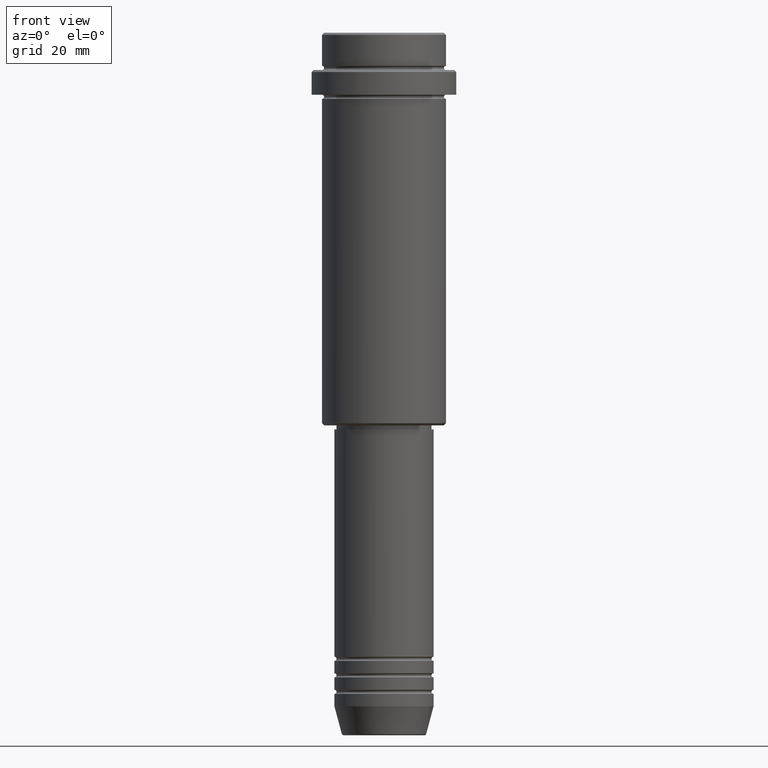
[diagram: clean part render]
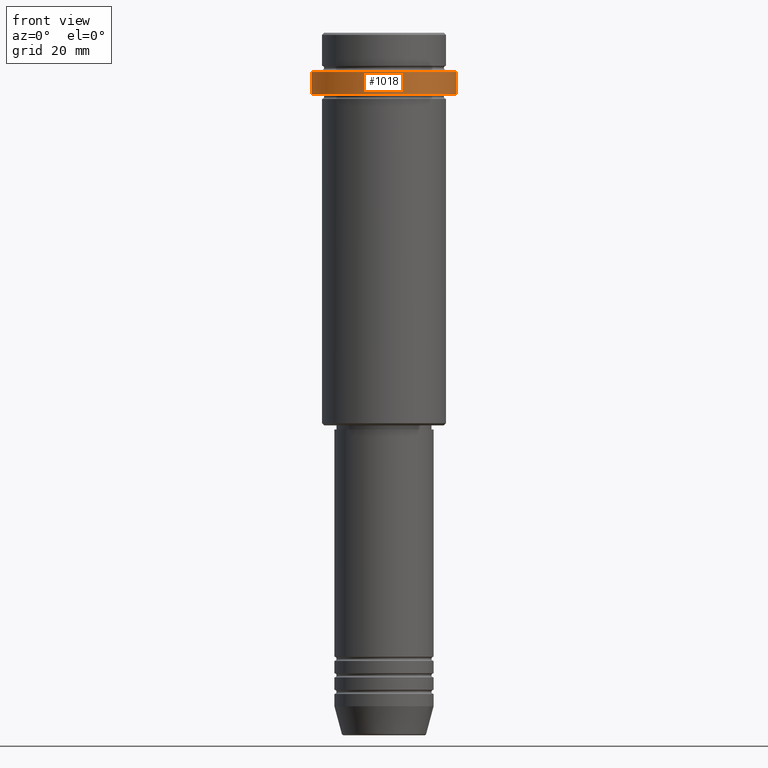
[diagram: same view with one face highlighted and labeled with its STEP entity id]
A machine part, front view. The second image highlights one B-rep face of the part: STEP entity #1018.
In plain terms, the highlighted cylindrical surface (partial cylindrical patch) has radius 17.5 mm, axis along (-0, -0, 1).
Its self-contained STEP definition (entity closure, byte-faithful):
#49 = VERTEX_POINT ( 'NONE', #283 ) ;
#52 = CARTESIAN_POINT ( 'NONE',  ( 17.50000000000000000, 0.000000000000000000, -15.00000000000000000 ) ) ;
#81 = EDGE_CURVE ( 'NONE', #49, #252, #910, .T. ) ;
#85 = VECTOR ( 'NONE', #139, 1000.000000000000000 ) ;
#104 = CARTESIAN_POINT ( 'NONE',  ( -17.50000000000000000, 2.143131898507868248E-15, -15.00000000000000000 ) ) ;
#139 = DIRECTION ( 'NONE',  ( -0.000000000000000000, -0.000000000000000000, 1.000000000000000000 ) ) ;
#177 = ORIENTED_EDGE ( 'NONE', *, *, #81, .T. ) ;
#252 = VERTEX_POINT ( 'NONE', #785 ) ;
#277 = CARTESIAN_POINT ( 'NONE',  ( 17.50000000000000000, 0.000000000000000000, 0.000000000000000000 ) ) ;
#283 = CARTESIAN_POINT ( 'NONE',  ( 17.50000000000000000, 0.000000000000000000, -9.500000000000055067 ) ) ;
#307 = AXIS2_PLACEMENT_3D ( 'NONE', #1147, #1366, #1354 ) ;
#316 = EDGE_CURVE ( 'NONE', #1116, #252, #1202, .T. ) ;
#341 = ORIENTED_EDGE ( 'NONE', *, *, #663, .T. ) ;
#375 = DIRECTION ( 'NONE',  ( -0.000000000000000000, -0.000000000000000000, 1.000000000000000000 ) ) ;
#378 = EDGE_CURVE ( 'NONE', #1335, #49, #1013, .T. ) ;
#386 = ORIENTED_EDGE ( 'NONE', *, *, #316, .F. ) ;
#389 = DIRECTION ( 'NONE',  ( -0.000000000000000000, -0.000000000000000000, 1.000000000000000000 ) ) ;
#394 = AXIS2_PLACEMENT_3D ( 'NONE', #496, #389, #1030 ) ;
#446 = ORIENTED_EDGE ( 'NONE', *, *, #378, .T. ) ;
#496 = CARTESIAN_POINT ( 'NONE',  ( 0.000000000000000000, 0.000000000000000000, -15.00000000000000000 ) ) ;
#566 = CIRCLE ( 'NONE', #394, 17.50000000000000000 ) ;
#662 = FACE_OUTER_BOUND ( 'NONE', #883, .T. ) ;
#663 = EDGE_CURVE ( 'NONE', #1116, #1335, #566, .T. ) ;
#687 = CARTESIAN_POINT ( 'NONE',  ( 0.000000000000000000, 0.000000000000000000, 0.000000000000000000 ) ) ;
#763 = CARTESIAN_POINT ( 'NONE',  ( -17.50000000000000000, 2.143131898507868248E-15, 0.000000000000000000 ) ) ;
#785 = CARTESIAN_POINT ( 'NONE',  ( -17.50000000000000000, 2.143131898507868248E-15, -9.500000000000055067 ) ) ;
#883 = EDGE_LOOP ( 'NONE', ( #386, #341, #446, #177 ) ) ;
#910 = CIRCLE ( 'NONE', #307, 17.50000000000000000 ) ;
#1013 = LINE ( 'NONE', #277, #1340 ) ;
#1018 = ADVANCED_FACE ( 'NONE', ( #662 ), #1102, .T. ) ;
#1030 = DIRECTION ( 'NONE',  ( 1.000000000000000000, 0.000000000000000000, 0.000000000000000000 ) ) ;
#1087 = DIRECTION ( 'NONE',  ( 1.000000000000000000, 0.000000000000000000, 0.000000000000000000 ) ) ;
#1102 = CYLINDRICAL_SURFACE ( 'NONE', #1348, 17.50000000000000000 ) ;
#1112 = DIRECTION ( 'NONE',  ( -0.000000000000000000, -0.000000000000000000, 1.000000000000000000 ) ) ;
#1116 = VERTEX_POINT ( 'NONE', #104 ) ;
#1147 = CARTESIAN_POINT ( 'NONE',  ( 0.000000000000000000, 0.000000000000000000, -9.500000000000055067 ) ) ;
#1202 = LINE ( 'NONE', #763, #85 ) ;
#1335 = VERTEX_POINT ( 'NONE', #52 ) ;
#1340 = VECTOR ( 'NONE', #375, 1000.000000000000000 ) ;
#1348 = AXIS2_PLACEMENT_3D ( 'NONE', #687, #1112, #1087 ) ;
#1354 = DIRECTION ( 'NONE',  ( 1.000000000000000000, 0.000000000000000000, 0.000000000000000000 ) ) ;
#1366 = DIRECTION ( 'NONE',  ( 0.000000000000000000, 0.000000000000000000, -1.000000000000000000 ) ) ;